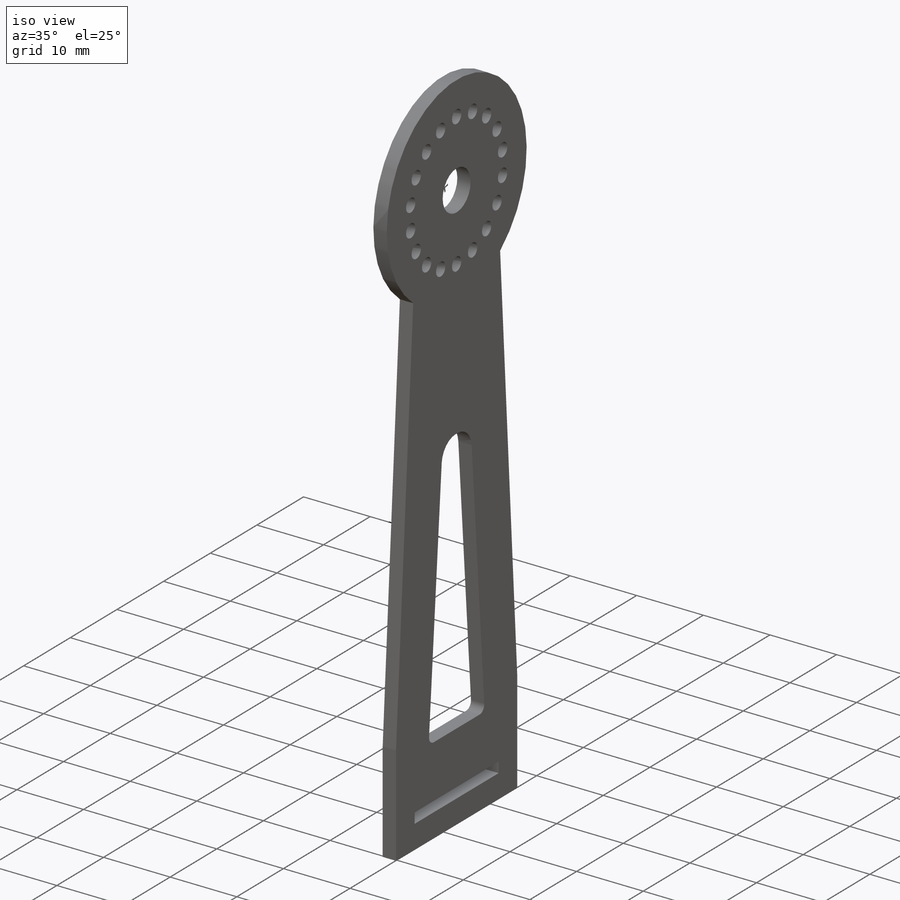
[diagram: iso view]
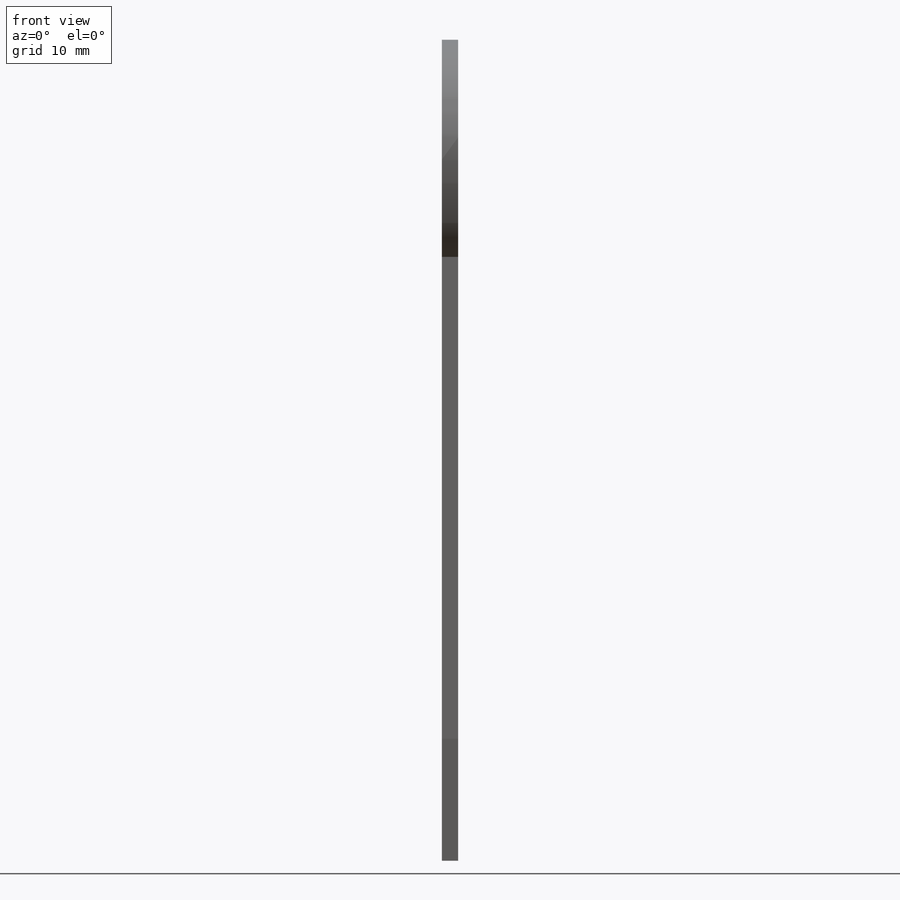
[diagram: front view]
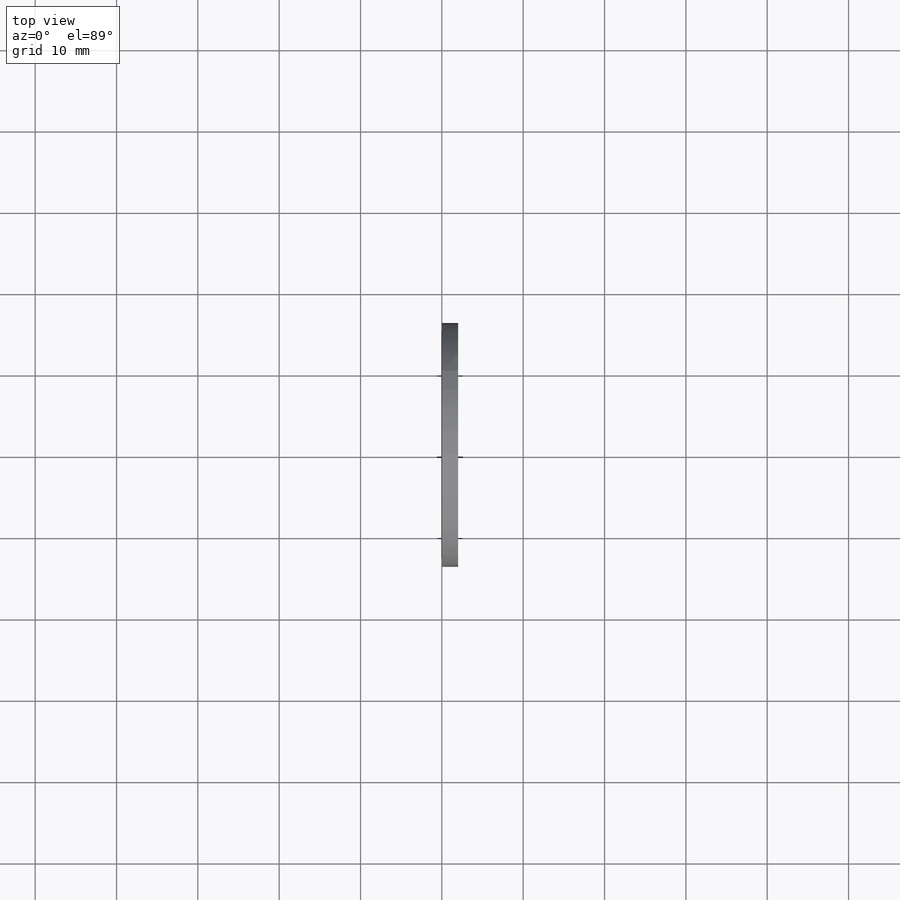
[diagram: top view]
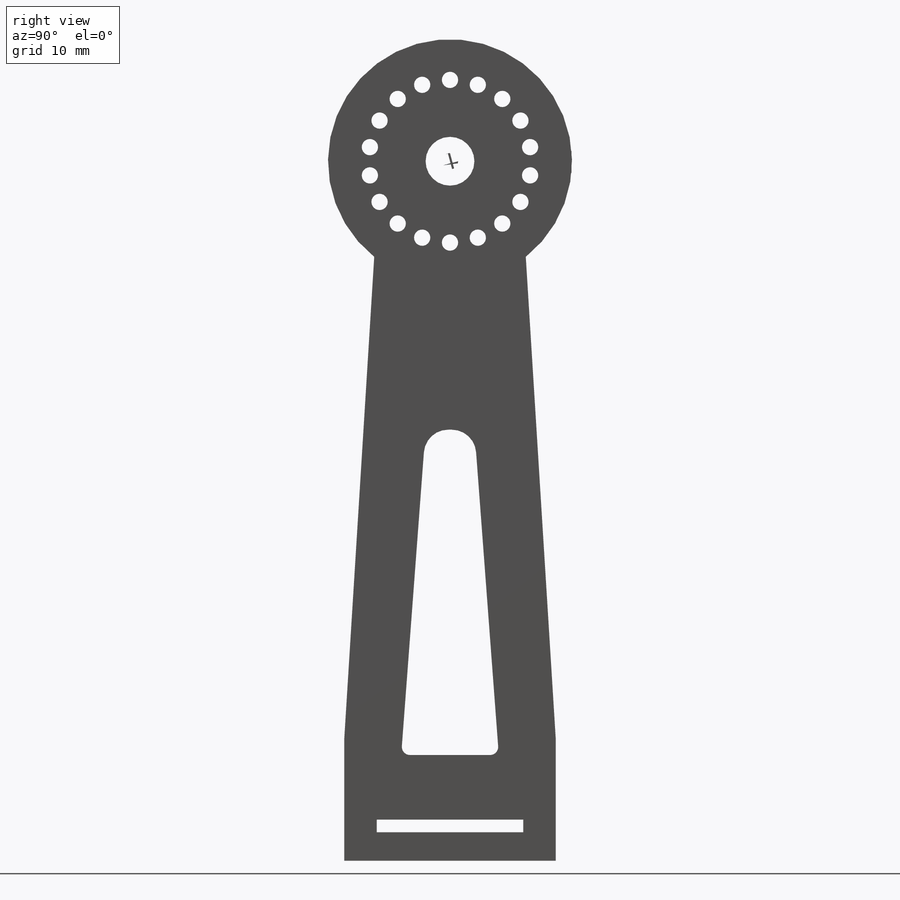
[diagram: right view]
SOLIDWORKS PART (.sldprt)
format: sldprt  version: not decoded by parser v0  size: 247,296 bytes
history: native  units: mm
features: plane x3, sketch x3, cut_extrude x2, material x1, extrude x1, mirror x1, pattern_circular x1 (+9 scaffold rows collapsed)
feature tree (21):
  scaffold x9  (default folders/planes/origin — collapsed)
  material  "Fibra de Vidro S"
  plane  "Plano frontal"
  plane  "Plano superior"
  plane  "Plano direito"
  sketch  "Esboço1"  dims[D1=30.0mm D2=26.0mm D3=15.0mm D4=15.0mm D5=86.0mm]
  extrude  "Ressalto-extrusão1"  Depth=2mm
  mirror  "Espelhar1"
  sketch  "Esboço2"  dims[D1=6.0mm D3=2.0mm D2=10.0mm]
  cut_extrude  "Corte-extrusão1"  Depth=2mm
  pattern_circular  "PadrãoCircular1"  Count=18 Angle=20deg
  sketch  "Esboço3"  dims[c1.D4=3.0mm c1.D5=1.0mm c1.D1=12.0mm c1.D2=6.0mm c1.D3=40.0mm c2.D4=13.0mm c2.D3=40.0mm c2.D6=18.0mm c2.D7=3.5mm]
  cut_extrude  "Corte-extrusão2"  Depth=2mm
decode coverage: 7 of 8 modeling features carry decoded parameters
note: suppression state not decoded; provenance and decode notes live in map.json
